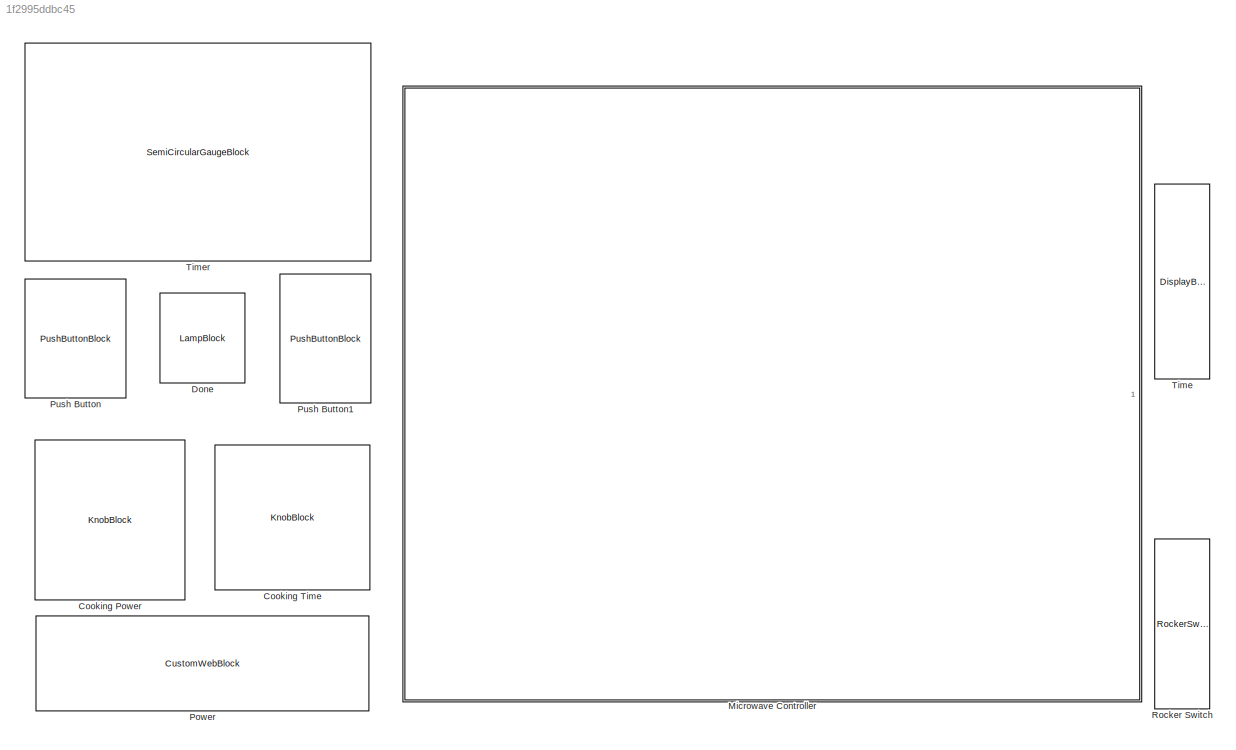
MODEL slx_1f2995ddbc45
KIND model
CONFIG AbsTol = auto
CONFIG EnableMultiTasking = off
CONFIG FixedStep = auto
CONFIG MaxStep = auto
CONFIG MinStep = auto
CONFIG RelTol = 1e-3
CONFIG SampleTimeConstraint = Unconstrained
CONFIG Solver = VariableStepAuto
CONFIG SolverName = VariableStepAuto
CONFIG StartTime = 0.0
CONFIG StopTime = 500
BLOCK [KnobBlock] Cooking Power
  ScaleMax = 800
BLOCK [KnobBlock] Cooking Time
  ScaleMax = 1000
BLOCK [LampBlock] Done
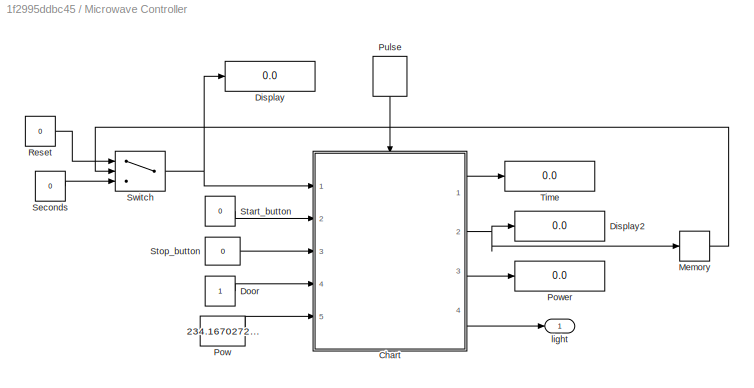
BLOCK [SubSystem] Microwave Controller
  Ports = [0, 1]
  RequestExecContextInheritance = off
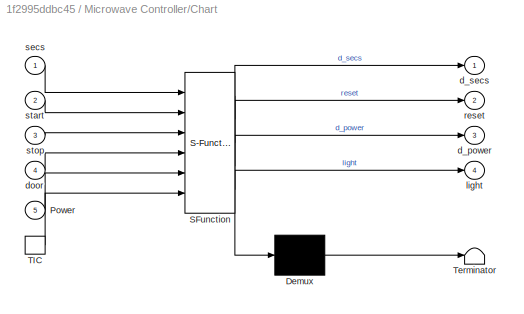
BLOCK [SubSystem] Microwave Controller/Chart
  ErrorFcn = Stateflow.Translate.translate
  PermitHierarchicalResolution = ExplicitOnly
  Ports = [5, 4, 0, 1]
  RequestExecContextInheritance = off
  SFBlockType = Chart
  TreatAsAtomicUnit = on
BLOCK [Demux] Microwave Controller/Chart/ Demux 
  Outputs = 1
  Ports = [1, 1]
BLOCK [S-Function] Microwave Controller/Chart/ SFunction 
  EnableBusSupport = on
  FunctionName = sf_sfun
  PortCounts = [6 5]
  Ports = [6, 5]
  SFcnIsStateOwnerBlock = off
  SFunctionDeploymentMode = off
  Tag = Stateflow S-Function 3
BLOCK [Terminator] Microwave Controller/Chart/ Terminator 
BLOCK [Inport] Microwave Controller/Chart/Power
  Port = 5
BLOCK [TriggerPort] Microwave Controller/Chart/TIC
  Ports = [0, 1]
  ShowOutputPort = on
  StatesWhenEnabling = held
  VariantControl = (inherit)
BLOCK [Outport] Microwave Controller/Chart/d_power
  Port = 3
BLOCK [Outport] Microwave Controller/Chart/d_secs
BLOCK [Inport] Microwave Controller/Chart/door
  Port = 4
BLOCK [Outport] Microwave Controller/Chart/light
  Port = 4
BLOCK [Outport] Microwave Controller/Chart/reset
  Port = 2
BLOCK [Inport] Microwave Controller/Chart/secs
BLOCK [Inport] Microwave Controller/Chart/start
  Port = 2
BLOCK [Inport] Microwave Controller/Chart/stop
  Port = 3
BLOCK [Display] Microwave Controller/Display
  Decimation = 1
  Ports = [1]
BLOCK [Display] Microwave Controller/Display2
  Decimation = 1
  Ports = [1]
BLOCK [Constant] Microwave Controller/Door
BLOCK [Memory] Microwave Controller/Memory
  InitialCondition = 1
BLOCK [Constant] Microwave Controller/Pow
  OutDataTypeStr = uint32
  Value = 234.1670272119581
BLOCK [Display] Microwave Controller/Power
  Decimation = 1
  Ports = [1]
BLOCK [DiscretePulseGenerator] Microwave Controller/Pulse
  NameLocation = left
  Period = 1
  Ports = [0, 1]
  PulseType = Time based
  PulseWidth = 5
BLOCK [Constant] Microwave Controller/Reset
  OutDataTypeStr = uint32
  Value = 0
BLOCK [Constant] Microwave Controller/Seconds
  OutDataTypeStr = uint32
  Value = 0
BLOCK [Constant] Microwave Controller/Start_button
  Value = 0
BLOCK [Constant] Microwave Controller/Stop_button
  Value = 0
BLOCK [Switch] Microwave Controller/Switch
  InputSameDT = off
  SaturateOnIntegerOverflow = off
  Threshold = 1
BLOCK [Display] Microwave Controller/Time
  Decimation = 1
  Ports = [1]
BLOCK [Outport] Microwave Controller/light
BLOCK [CustomWebBlock] Power
  Configuration = {"components":[{"name":"LinearScaleComponent","settings":{"bounds":{"max":800,"min":0,"tickInterval":"auto"},"labelColor":[250,245,199],"labelFont":{"font":"Arial","fontSize":12},"labelTransparency":1,"needleImage":{"size":[21,75],"src":"data:image\/svg+xml;base64,PHN2ZyB4bWxucz0iaHR0cDovL3d3dy53My5vcmcvMjAwMC9zdmciIHhtbG5zOnhsaW5rPSJodHRwOi8vd3d3LnczLm9yZy8xOTk5L3hsaW5rIiB2aWV3Qm94PSIwIDAgMjEgNzU...<+5506ch>
  ShowInitialText = on
BLOCK [PushButtonBlock] Push Button
  ButtonText = START
BLOCK [PushButtonBlock] Push Button1
  ButtonText = STOP
BLOCK [RockerSwitchBlock] Rocker Switch
BLOCK [DisplayBlock] Time
  Format = short
  LabelPosition = Hide
  Transparency = 1
BLOCK [SemiCircularGaugeBlock] Timer
  ScaleMax = 1000
LINE Microwave Controller/Chart:1 -> Microwave Controller/Time:1
NET Microwave Controller/Chart:2 -> Microwave Controller/Display2:1, Microwave Controller/Memory:1
LINE Microwave Controller/Chart:3 -> Microwave Controller/Power:1
LINE Microwave Controller/Chart:4 -> Microwave Controller/light:1
LINE Microwave Controller/Door:1 -> Microwave Controller/Chart:4
LINE Microwave Controller/Memory:1 -> Microwave Controller/Switch:2
LINE Microwave Controller/Pow:1 -> Microwave Controller/Chart:5
LINE Microwave Controller/Pulse:1 -> Microwave Controller/Chart:trigger
LINE Microwave Controller/Reset:1 -> Microwave Controller/Switch:1
LINE Microwave Controller/Seconds:1 -> Microwave Controller/Switch:3
LINE Microwave Controller/Start_button:1 -> Microwave Controller/Chart:2
LINE Microwave Controller/Stop_button:1 -> Microwave Controller/Chart:3
NET Microwave Controller/Switch:1 -> Microwave Controller/Chart:1, Microwave Controller/Display:1
note: NET lines group one-source signal fan-out (src -> all destinations, sorted); 1:1 wires keep LINE
CHART Microwave Controller/Chart states=5 transitions=10
  STATE_LABEL 'Microwave\nen:d_secs=0;sec=0;d_power=0;light=0;reset=0;\ndu:count=secs;count_in=secs;d_secs=secs;\nd_power=Power;\n'
  STATE_LABEL 'stop\nen:en=0;\ndu:d_secs=count_in;light=0;\nd_power=Power;\non TIC:Inactive()\nif en==1\n    reset=0;\nend;\nex:sec=0;\n'
  STATE_LABEL 'Cooking\ndu:d_secs=count_in;count=secs;\nd_power=Power;\non TIC:count_in=count_in-1;'
  STATE_LABEL 'Check\nen:count_in=secs\ncount=secs;'
  STATE_LABEL 'Inactive'
  STATE_LABEL 'SCRIPT:\nfunction Inactive\nsec = sec+1;\nif sec == 300\n    en=1;\nend'
CHART  states=0 transitions=0
